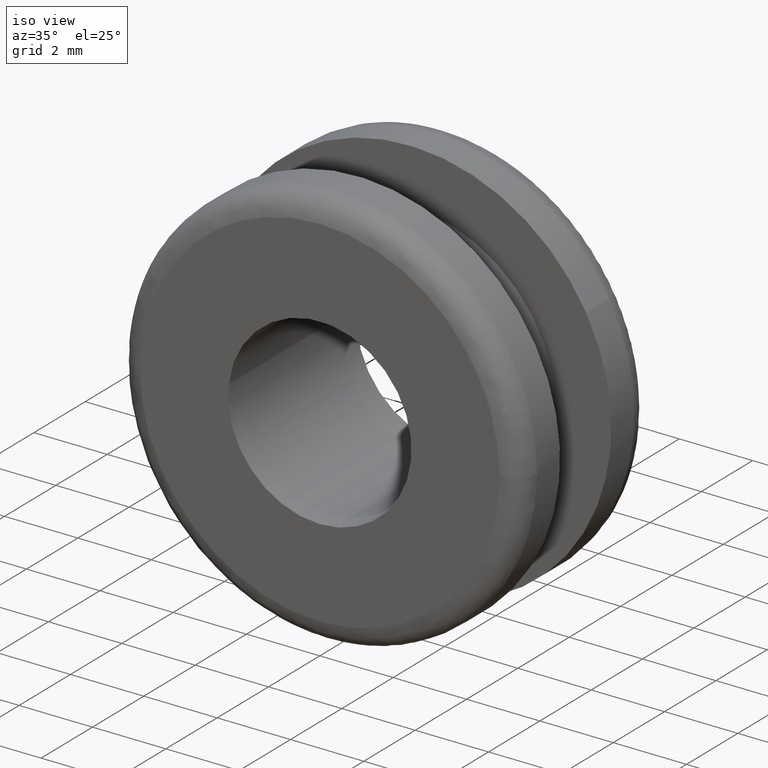
[diagram: clean part render]
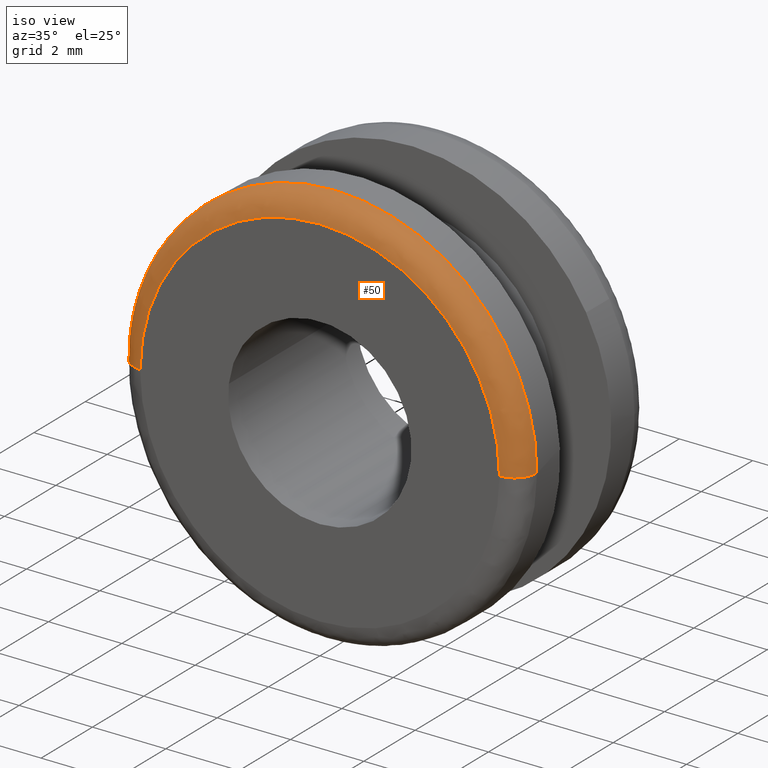
[diagram: same view with one face highlighted and labeled with its STEP entity id]
A machine part, iso view. The second image highlights one B-rep face of the part: STEP entity #50.
In plain terms, the highlighted face is a freeform B-spline surface patch.
Its self-contained STEP definition (entity closure, byte-faithful):
#50=ADVANCED_FACE('',(#161),#160,.T.);
#160=( BOUNDED_SURFACE() B_SPLINE_SURFACE( 2,2,((#316,#317,#318,#319,#320),(#321,#322,#323,#324,#325),(#326,#327,#328,#329,#330),(#331,#332,#333,#334,#335),(#336,#337,#338,#339,#340)), .UNSPECIFIED.,.F.,.F.,.F.) B_SPLINE_SURFACE_WITH_KNOTS((3,2,3),(3,2,3),(-2.11731291373E-006,1.04719684543E+000,1.57079709007E+000),(0.00000000000E+000,1.57079632679E+000,3.14159265359E+000), .UNSPECIFIED. ) GEOMETRIC_REPRESENTATION_ITEM() RATIONAL_B_SPLINE_SURFACE(((1.00000000000E+000,7.07106781187E-001,1.00000000000E+000,7.07106781187E-001,1.00000000000E+000),(8.66025050899E-001,6.12372186168E-001,8.66025050899E-001,6.12372186168E-001,8.66025050899E-001),(1.00000000000E+000,7.07106781187E-001,1.00000000000E+000,7.07106781187E-001,1.00000000000E+000),(9.33012427799E-001,6.59739414628E-001,9.33012427799E-001,6.59739414628E-001,9.33012427799E-001),(9.33012525450E-001,6.59739483677E-001,9.33012525450E-001,6.59739483677E-001,9.33012525450E-001))) REPRESENTATION_ITEM('') SURFACE() );
#161=FACE_OUTER_BOUND('',#341,.T.);
#316=CARTESIAN_POINT('',(-5.50000000000E+000,6.00001270388E-001,8.52955117976E-014));
#317=CARTESIAN_POINT('',(-5.50000000000E+000,6.00001270388E-001,5.50000000000E+000));
#318=CARTESIAN_POINT('',(-2.47130738920E-012,6.00001270388E-001,5.50000000000E+000));
#319=CARTESIAN_POINT('',(5.49999999999E+000,6.00001270387E-001,5.50000000000E+000));
#320=CARTESIAN_POINT('',(5.49999999999E+000,6.00001270387E-001,8.39484448084E-014));
#321=CARTESIAN_POINT('',(-5.50000073346E+000,2.53590544258E-001,8.56389508929E-014));
#322=CARTESIAN_POINT('',(-5.50000073346E+000,2.53590544258E-001,5.50000073346E+000));
#323=CARTESIAN_POINT('',(-2.47964300537E-012,2.53590544258E-001,5.50000073346E+000));
#324=CARTESIAN_POINT('',(5.50000073345E+000,2.53590544257E-001,5.50000073346E+000));
#325=CARTESIAN_POINT('',(5.50000073345E+000,2.53590544257E-001,8.42918837240E-014));
#326=CARTESIAN_POINT('',(-5.20000036673E+000,8.03849694607E-002,8.57739323700E-014));
#327=CARTESIAN_POINT('',(-5.20000036673E+000,8.03849694607E-002,5.20000036673E+000));
#328=CARTESIAN_POINT('',(-2.48384755683E-012,8.03849694606E-002,5.20000036673E+000));
#329=CARTESIAN_POINT('',(5.20000036672E+000,8.03849694605E-002,5.20000036673E+000));
#330=CARTESIAN_POINT('',(5.20000036672E+000,8.03849694605E-002,8.45003416722E-014));
#331=CARTESIAN_POINT('',(-5.06076952486E+000,-1.25594168145E-007,8.58365775757E-014));
#332=CARTESIAN_POINT('',(-5.06076952486E+000,-1.25594163138E-007,5.06076952485E+000));
#333=CARTESIAN_POINT('',(-2.48579889858E-012,-1.25594284878E-007,5.06076952485E+000));
#334=CARTESIAN_POINT('',(5.06076952485E+000,-1.25594406632E-007,5.06076952485E+000));
#335=CARTESIAN_POINT('',(5.06076952485E+000,-1.25594411643E-007,8.45970874726E-014));
#336=CARTESIAN_POINT('',(-4.89999953128E+000,1.61435045093E-013,8.58168894556E-014));
#337=CARTESIAN_POINT('',(-4.89999953128E+000,1.66287750131E-013,4.89999953127E+000));
#338=CARTESIAN_POINT('',(-2.48581858355E-012,4.84136624938E-014,4.89999953127E+000));
#339=CARTESIAN_POINT('',(4.89999953127E+000,-6.94701099134E-014,4.89999953127E+000));
#340=CARTESIAN_POINT('',(4.89999953127E+000,-7.43279903784E-014,8.46167753437E-014));
#341=EDGE_LOOP('',(#451,#452,#453,#454,#455,#456,#457,#458));
#451=ORIENTED_EDGE('',*,*,#518,.T.);
#452=ORIENTED_EDGE('',*,*,#517,.T.);
#453=ORIENTED_EDGE('',*,*,#525,.T.);
#454=ORIENTED_EDGE('',*,*,#524,.T.);
#455=ORIENTED_EDGE('',*,*,#535,.T.);
#456=ORIENTED_EDGE('',*,*,#508,.F.);
#457=ORIENTED_EDGE('',*,*,#510,.F.);
#458=ORIENTED_EDGE('',*,*,#536,.F.);
#508=EDGE_CURVE('',#667,#668,#669,.T.);
#510=EDGE_CURVE('',#675,#667,#682,.T.);
#517=EDGE_CURVE('',#728,#721,#729,.T.);
#518=EDGE_CURVE('',#735,#728,#736,.T.);
#524=EDGE_CURVE('',#776,#769,#777,.T.);
#525=EDGE_CURVE('',#721,#776,#783,.T.);
#535=EDGE_CURVE('',#769,#668,#850,.T.);
#536=EDGE_CURVE('',#735,#675,#856,.T.);
#667=VERTEX_POINT('',#976);
#668=VERTEX_POINT('',#977);
#669=CIRCLE('',#981,4.90000000035E+000);
#675=VERTEX_POINT('',#982);
#682=CIRCLE('',#990,4.90000000035E+000);
#721=VERTEX_POINT('',#1010);
#728=VERTEX_POINT('',#1013);
#729=CIRCLE('',#1017,5.50000000000E+000);
#735=VERTEX_POINT('',#1018);
#736=CIRCLE('',#1022,5.50000000000E+000);
#769=VERTEX_POINT('',#1040);
#776=VERTEX_POINT('',#1045);
#777=CIRCLE('',#1049,5.50000064834E+000);
#783=CIRCLE('',#1053,5.50000000000E+000);
#850=(BOUNDED_CURVE() B_SPLINE_CURVE(2,(#1096,#1097,#1098,#1099,#1100),.UNSPECIFIED.,.F.,.F.) B_SPLINE_CURVE_WITH_KNOTS((3,2,3),(1.29733284848E-007,1.04719684543E+000,1.57079628518E+000),.UNSPECIFIED.) CURVE() GEOMETRIC_REPRESENTATION_ITEM() RATIONAL_B_SPLINE_CURVE((1.00000000000E+000,8.66025050899E-001,1.00000000000E+000,9.33012530773E-001,9.33012525449E-001)) REPRESENTATION_ITEM('') );
#856=(BOUNDED_CURVE() B_SPLINE_CURVE(2,(#1101,#1102,#1103,#1104,#1105),.UNSPECIFIED.,.F.,.F.) B_SPLINE_CURVE_WITH_KNOTS((3,2,3),(-2.11731291373E-006,1.04719684543E+000,1.57079709007E+000),.UNSPECIFIED.) CURVE() GEOMETRIC_REPRESENTATION_ITEM() RATIONAL_B_SPLINE_CURVE((1.00000000000E+000,8.66025050899E-001,1.00000000000E+000,9.33012427799E-001,9.33012525450E-001)) REPRESENTATION_ITEM('') );
#976=CARTESIAN_POINT('',(6.71594825352E-017,-2.11017492109E-014,4.90000000070E+000));
#977=CARTESIAN_POINT('',(-4.90000000042E+000,-1.10009174626E-014,3.79705125594E-009));
#978=CARTESIAN_POINT('',(-6.60995702617E-011,-1.10009174554E-014,3.49191342508E-010));
#979=DIRECTION('',(1.42298187706E-032,-1.00000000000E+000,-2.06139423566E-015));
#980=DIRECTION('',(1.34895994611E-011,-2.06139423566E-015,1.00000000000E+000));
#981=AXIS2_PLACEMENT_3D('',#978,#979,#980);
#982=CARTESIAN_POINT('',(4.90000000028E+000,-1.10009174530E-014,-8.44162196626E-010));
#987=CARTESIAN_POINT('',(-6.60995702617E-011,-1.10009174554E-014,3.49191342508E-010));
#988=DIRECTION('',(1.42298187706E-032,-1.00000000000E+000,-2.06139423566E-015));
#989=DIRECTION('',(1.34895994611E-011,-2.06139423566E-015,1.00000000000E+000));
#990=AXIS2_PLACEMENT_3D('',#987,#988,#989);
#1010=CARTESIAN_POINT('',(-2.98500873914E+000,5.99999999998E-001,4.61949378474E+000));
#1013=CARTESIAN_POINT('',(0.00000000000E+000,6.00000000000E-001,5.50000000000E+000));
#1014=CARTESIAN_POINT('',(1.19682042055E-012,5.99999999988E-001,-1.28119737042E-012));
#1015=DIRECTION('',(3.59205878744E-028,-1.00000000000E+000,2.09715073590E-012));
#1016=DIRECTION('',(2.17603712826E-013,-2.09715073590E-012,-1.00000000000E+000));
#1017=AXIS2_PLACEMENT_3D('',#1014,#1015,#1016);
#1018=CARTESIAN_POINT('',(5.49999999719E+000,6.00000000011E-001,-1.75740065892E-004));
#1019=CARTESIAN_POINT('',(3.99680288865E-015,5.99999999982E-001,4.88498130835E-015));
#1020=DIRECTION('',(5.22485334515E-012,-1.00000000000E+000,3.09870782410E-010));
#1021=DIRECTION('',(-9.99921044204E-001,-1.33059220208E-012,1.25660398839E-002));
#1022=AXIS2_PLACEMENT_3D('',#1019,#1020,#1021);
#1040=CARTESIAN_POINT('',(-5.49999998354E+000,6.00000000011E-001,-3.31950941483E-011));
#1045=CARTESIAN_POINT('',(-5.48661120612E+000,5.99999999989E-001,3.83532883667E-001));
#1046=CARTESIAN_POINT('',(6.64798021077E-007,5.99999999921E-001,2.12812069078E-007));
#1047=DIRECTION('',(-1.62315183284E-011,-1.00000000000E+000,-5.48873869857E-011));
#1048=DIRECTION('',(9.97565677120E-001,-1.23645321818E-011,-6.97332046626E-002));
#1049=AXIS2_PLACEMENT_3D('',#1046,#1047,#1048);
#1050=CARTESIAN_POINT('',(1.19682042055E-012,5.99999999988E-001,-1.28119737042E-012));
#1051=DIRECTION('',(3.59205878744E-028,-1.00000000000E+000,2.09715073590E-012));
#1052=DIRECTION('',(2.17603712826E-013,-2.09715073590E-012,-1.00000000000E+000));
#1053=AXIS2_PLACEMENT_3D('',#1050,#1051,#1052);
#1096=CARTESIAN_POINT('',(-5.50000000000E+000,6.00001270388E-001,8.52955117976E-014));
#1097=CARTESIAN_POINT('',(-5.50000073346E+000,2.53590544258E-001,8.56389508929E-014));
#1098=CARTESIAN_POINT('',(-5.20000036673E+000,8.03849694607E-002,8.57739323700E-014));
#1099=CARTESIAN_POINT('',(-5.06076975425E+000,6.84707506871E-009,8.58365774725E-014));
#1100=CARTESIAN_POINT('',(-4.90000002555E+000,-2.11051974642E-014,8.58168895162E-014));
#1101=CARTESIAN_POINT('',(5.49999999999E+000,6.00001270387E-001,8.39484448084E-014));
#1102=CARTESIAN_POINT('',(5.50000073345E+000,2.53590544257E-001,8.42918837240E-014));
#1103=CARTESIAN_POINT('',(5.20000036672E+000,8.03849694605E-002,8.45003416722E-014));
#1104=CARTESIAN_POINT('',(5.06076952485E+000,-1.25594411643E-007,8.45970874726E-014));
#1105=CARTESIAN_POINT('',(4.89999953127E+000,-7.43279903784E-014,8.46167753437E-014));